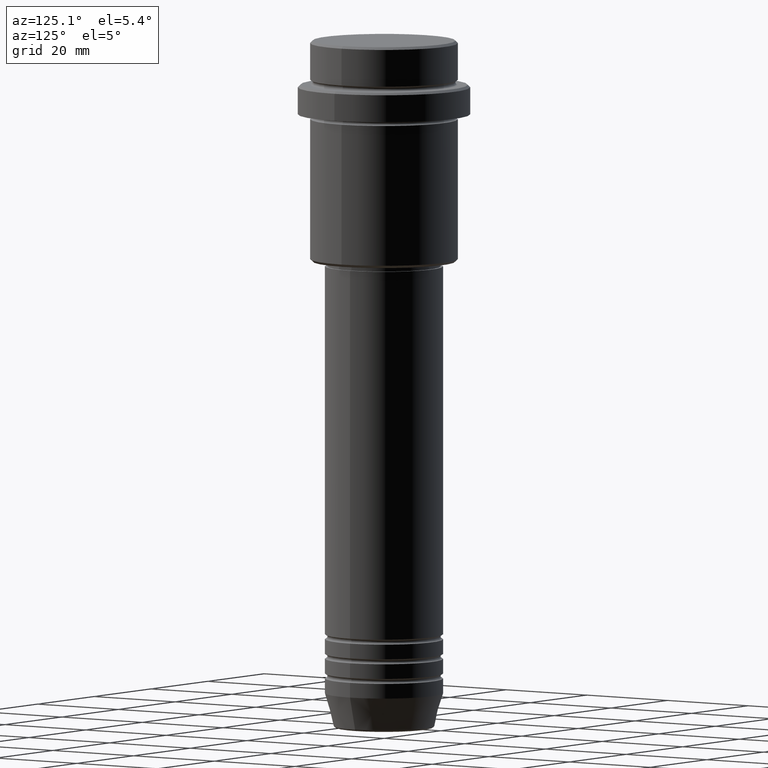
[diagram: clean part render]
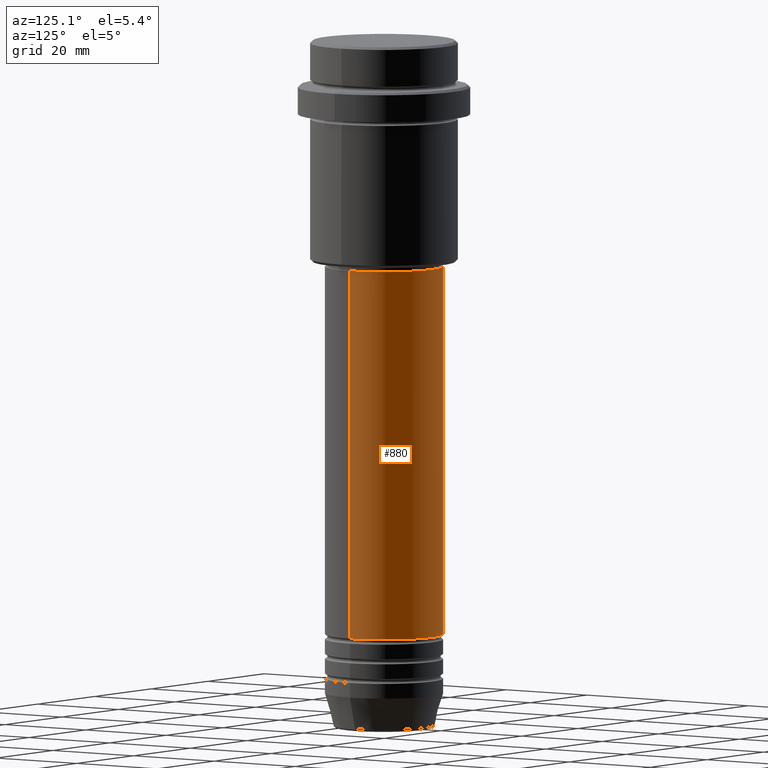
[diagram: same view with one face highlighted and labeled with its STEP entity id]
A machine part, auxiliary view. The second image highlights one B-rep face of the part: STEP entity #880.
In plain terms, the highlighted cylindrical surface (partial cylindrical patch) has radius 12 mm, axis along (-0, -0, 1).
Its self-contained STEP definition (entity closure, byte-faithful):
#6 = CARTESIAN_POINT ( 'NONE',  ( -12.00000000000000000, 1.469576158976823947E-15, -120.9999999999999005 ) ) ;
#31 = ORIENTED_EDGE ( 'NONE', *, *, #91, .F. ) ;
#88 = CARTESIAN_POINT ( 'NONE',  ( 11.99999999999999822, 0.000000000000000000, -46.00000000000001421 ) ) ;
#91 = EDGE_CURVE ( 'NONE', #957, #832, #644, .T. ) ;
#94 = VECTOR ( 'NONE', #114, 1000.000000000000000 ) ;
#114 = DIRECTION ( 'NONE',  ( -0.000000000000000000, -0.000000000000000000, 1.000000000000000000 ) ) ;
#132 = CARTESIAN_POINT ( 'NONE',  ( 0.000000000000000000, 0.000000000000000000, -46.00000000000001421 ) ) ;
#220 = LINE ( 'NONE', #1230, #288 ) ;
#237 = VERTEX_POINT ( 'NONE', #291 ) ;
#288 = VECTOR ( 'NONE', #670, 1000.000000000000000 ) ;
#291 = CARTESIAN_POINT ( 'NONE',  ( -11.99999999999999822, 1.469576158976823750E-15, -46.00000000000001421 ) ) ;
#359 = EDGE_CURVE ( 'NONE', #957, #926, #768, .T. ) ;
#364 = DIRECTION ( 'NONE',  ( -0.000000000000000000, -0.000000000000000000, 1.000000000000000000 ) ) ;
#395 = AXIS2_PLACEMENT_3D ( 'NONE', #132, #364, #1232 ) ;
#411 = DIRECTION ( 'NONE',  ( 1.000000000000000000, 0.000000000000000000, 0.000000000000000000 ) ) ;
#452 = EDGE_LOOP ( 'NONE', ( #771, #650, #558, #31 ) ) ;
#558 = ORIENTED_EDGE ( 'NONE', *, *, #580, .F. ) ;
#580 = EDGE_CURVE ( 'NONE', #832, #237, #770, .T. ) ;
#644 = LINE ( 'NONE', #1095, #94 ) ;
#650 = ORIENTED_EDGE ( 'NONE', *, *, #1323, .T. ) ;
#670 = DIRECTION ( 'NONE',  ( -0.000000000000000000, -0.000000000000000000, 1.000000000000000000 ) ) ;
#705 = AXIS2_PLACEMENT_3D ( 'NONE', #1295, #750, #734 ) ;
#734 = DIRECTION ( 'NONE',  ( 1.000000000000000000, 0.000000000000000000, 0.000000000000000000 ) ) ;
#750 = DIRECTION ( 'NONE',  ( -0.000000000000000000, -0.000000000000000000, 1.000000000000000000 ) ) ;
#768 = CIRCLE ( 'NONE', #1172, 12.00000000000000000 ) ;
#770 = CIRCLE ( 'NONE', #395, 11.99999999999999822 ) ;
#771 = ORIENTED_EDGE ( 'NONE', *, *, #359, .T. ) ;
#832 = VERTEX_POINT ( 'NONE', #88 ) ;
#880 = ADVANCED_FACE ( 'NONE', ( #978 ), #1411, .T. ) ;
#926 = VERTEX_POINT ( 'NONE', #6 ) ;
#940 = DIRECTION ( 'NONE',  ( -0.000000000000000000, -0.000000000000000000, 1.000000000000000000 ) ) ;
#957 = VERTEX_POINT ( 'NONE', #1116 ) ;
#978 = FACE_OUTER_BOUND ( 'NONE', #452, .T. ) ;
#1095 = CARTESIAN_POINT ( 'NONE',  ( 12.00000000000000000, 0.000000000000000000, 0.000000000000000000 ) ) ;
#1116 = CARTESIAN_POINT ( 'NONE',  ( 12.00000000000000000, 0.000000000000000000, -120.9999999999999005 ) ) ;
#1168 = CARTESIAN_POINT ( 'NONE',  ( 0.000000000000000000, 0.000000000000000000, -120.9999999999999005 ) ) ;
#1172 = AXIS2_PLACEMENT_3D ( 'NONE', #1168, #940, #411 ) ;
#1230 = CARTESIAN_POINT ( 'NONE',  ( -12.00000000000000000, 1.469576158976823947E-15, 0.000000000000000000 ) ) ;
#1232 = DIRECTION ( 'NONE',  ( 1.000000000000000000, 0.000000000000000000, 0.000000000000000000 ) ) ;
#1295 = CARTESIAN_POINT ( 'NONE',  ( 0.000000000000000000, 0.000000000000000000, 0.000000000000000000 ) ) ;
#1323 = EDGE_CURVE ( 'NONE', #926, #237, #220, .T. ) ;
#1411 = CYLINDRICAL_SURFACE ( 'NONE', #705, 12.00000000000000000 ) ;